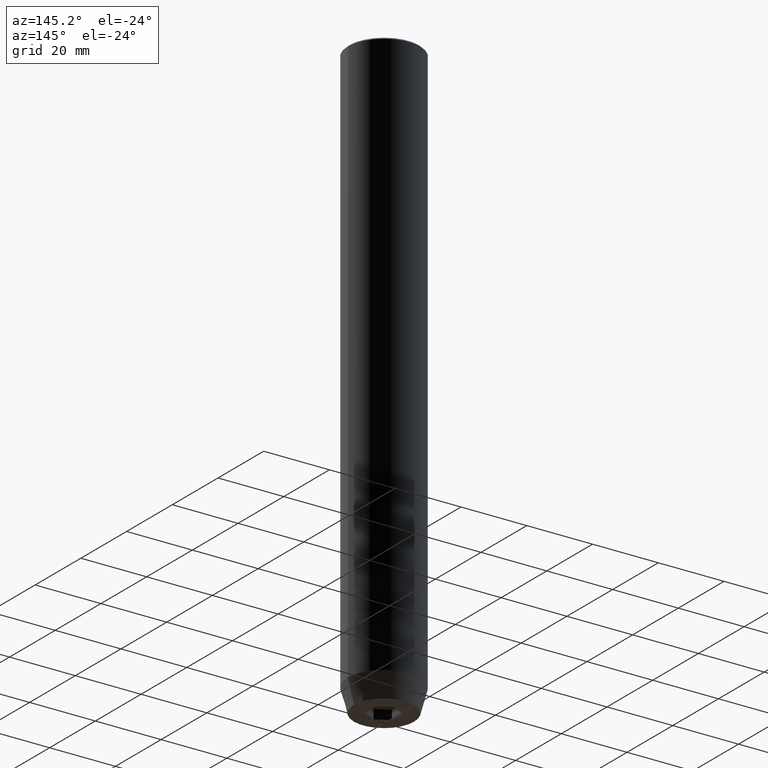
[diagram: clean part render]
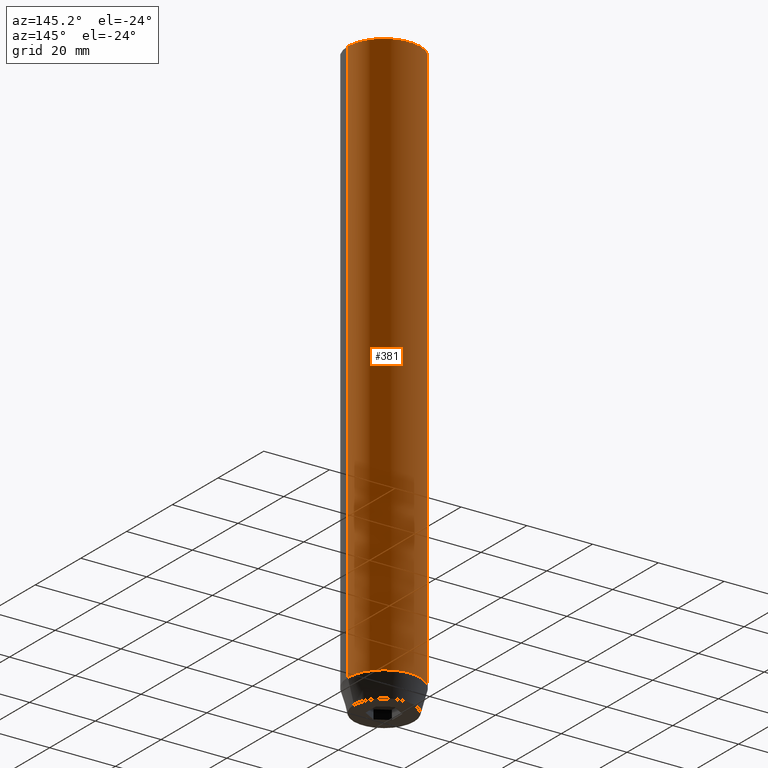
[diagram: same view with one face highlighted and labeled with its STEP entity id]
A machine part, auxiliary view. The second image highlights one B-rep face of the part: STEP entity #381.
In plain terms, the highlighted cylindrical surface (partial cylindrical patch) has radius 11 mm, axis along (-0, -0, 1).
Its self-contained STEP definition (entity closure, byte-faithful):
#5 = VECTOR ( 'NONE', #119, 1000.000000000000000 ) ;
#31 = CARTESIAN_POINT ( 'NONE',  ( -11.00000000000000000, 1.347111479062088405E-15, -0.5000000000000004441 ) ) ;
#38 = ORIENTED_EDGE ( 'NONE', *, *, #422, .T. ) ;
#73 = CARTESIAN_POINT ( 'NONE',  ( 0.000000000000000000, 0.000000000000000000, -0.5000000000000004441 ) ) ;
#85 = CYLINDRICAL_SURFACE ( 'NONE', #273, 11.00000000000000000 ) ;
#87 = DIRECTION ( 'NONE',  ( -0.000000000000000000, -0.000000000000000000, 1.000000000000000000 ) ) ;
#94 = AXIS2_PLACEMENT_3D ( 'NONE', #73, #165, #340 ) ;
#119 = DIRECTION ( 'NONE',  ( -0.000000000000000000, -0.000000000000000000, 1.000000000000000000 ) ) ;
#126 = DIRECTION ( 'NONE',  ( -0.000000000000000000, -0.000000000000000000, 1.000000000000000000 ) ) ;
#132 = DIRECTION ( 'NONE',  ( 1.000000000000000000, 0.000000000000000000, 0.000000000000000000 ) ) ;
#165 = DIRECTION ( 'NONE',  ( 0.000000000000000000, 0.000000000000000000, -1.000000000000000000 ) ) ;
#170 = FACE_OUTER_BOUND ( 'NONE', #450, .T. ) ;
#211 = CARTESIAN_POINT ( 'NONE',  ( 11.00000000000000000, 0.000000000000000000, 0.000000000000000000 ) ) ;
#256 = VERTEX_POINT ( 'NONE', #379 ) ;
#261 = ORIENTED_EDGE ( 'NONE', *, *, #560, .F. ) ;
#273 = AXIS2_PLACEMENT_3D ( 'NONE', #511, #87, #351 ) ;
#283 = VERTEX_POINT ( 'NONE', #331 ) ;
#311 = VERTEX_POINT ( 'NONE', #562 ) ;
#317 = VECTOR ( 'NONE', #126, 1000.000000000000000 ) ;
#331 = CARTESIAN_POINT ( 'NONE',  ( 11.00000000000000000, 0.000000000000000000, -173.0000000000000000 ) ) ;
#332 = ORIENTED_EDGE ( 'NONE', *, *, #495, .T. ) ;
#340 = DIRECTION ( 'NONE',  ( 1.000000000000000000, 0.000000000000000000, 0.000000000000000000 ) ) ;
#345 = CARTESIAN_POINT ( 'NONE',  ( -11.00000000000000000, 1.347111479062088405E-15, 0.000000000000000000 ) ) ;
#351 = DIRECTION ( 'NONE',  ( 1.000000000000000000, 0.000000000000000000, 0.000000000000000000 ) ) ;
#375 = ORIENTED_EDGE ( 'NONE', *, *, #574, .T. ) ;
#379 = CARTESIAN_POINT ( 'NONE',  ( 11.00000000000000000, 0.000000000000000000, -0.5000000000000004441 ) ) ;
#381 = ADVANCED_FACE ( 'NONE', ( #170 ), #85, .T. ) ;
#382 = CIRCLE ( 'NONE', #493, 11.00000000000000000 ) ;
#399 = DIRECTION ( 'NONE',  ( -0.000000000000000000, -0.000000000000000000, 1.000000000000000000 ) ) ;
#422 = EDGE_CURVE ( 'NONE', #283, #311, #382, .T. ) ;
#442 = CARTESIAN_POINT ( 'NONE',  ( 0.000000000000000000, 0.000000000000000000, -173.0000000000000000 ) ) ;
#450 = EDGE_LOOP ( 'NONE', ( #38, #332, #375, #261 ) ) ;
#457 = CIRCLE ( 'NONE', #94, 11.00000000000000000 ) ;
#472 = VERTEX_POINT ( 'NONE', #31 ) ;
#473 = LINE ( 'NONE', #211, #5 ) ;
#486 = LINE ( 'NONE', #345, #317 ) ;
#493 = AXIS2_PLACEMENT_3D ( 'NONE', #442, #399, #132 ) ;
#495 = EDGE_CURVE ( 'NONE', #311, #472, #486, .T. ) ;
#511 = CARTESIAN_POINT ( 'NONE',  ( 0.000000000000000000, 0.000000000000000000, 0.000000000000000000 ) ) ;
#560 = EDGE_CURVE ( 'NONE', #283, #256, #473, .T. ) ;
#562 = CARTESIAN_POINT ( 'NONE',  ( -11.00000000000000000, 1.347111479062088405E-15, -173.0000000000000000 ) ) ;
#574 = EDGE_CURVE ( 'NONE', #472, #256, #457, .T. ) ;